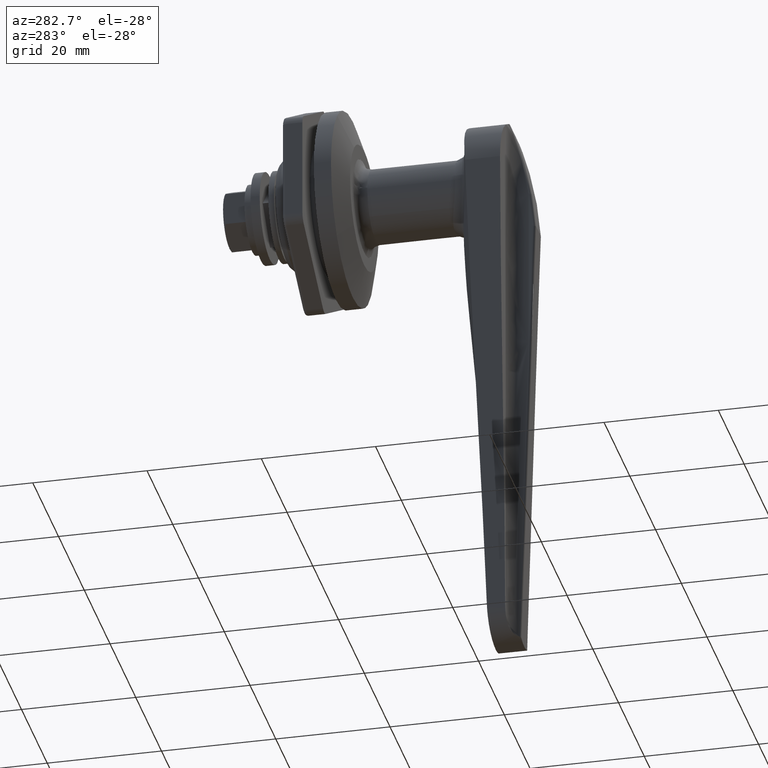
[diagram: clean part render]
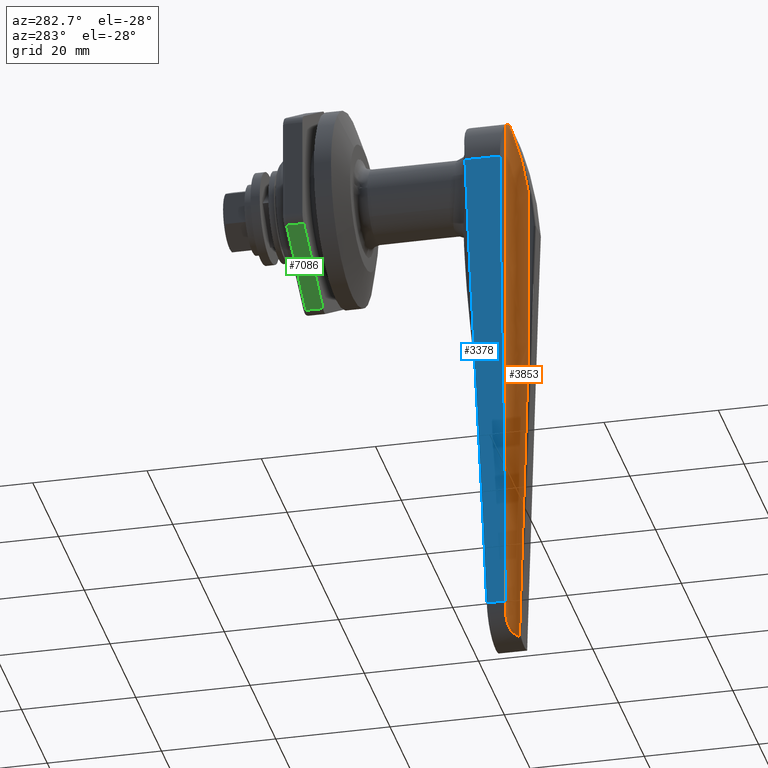
[diagram: same view with three faces highlighted in distinct colors, each labeled with its STEP entity id]
A machine part, auxiliary view with three faces highlighted in distinct colors.
Their STEP definitions:

[orange] entity #3853 — the highlighted face is a freeform B-spline surface patch.
#2181=CARTESIAN_POINT('',(-29.300317116931851,2.250000000000000,-30.382041664599249));
#2182=VERTEX_POINT('',#2181);
#2193=CARTESIAN_POINT('',(-27.753205948540550,2.635133445140440,-87.390744111991296));
#2194=VERTEX_POINT('',#2193);
#2195=CARTESIAN_POINT('',(-27.753205948540529,2.635133445140440,-87.390744111990998));
#2196=CARTESIAN_POINT('',(-28.478824521616303,2.250000000000001,-60.652799116227861));
#2197=CARTESIAN_POINT('',(-29.300317116931851,2.250000000000000,-30.382041664599171));
#2205=(BOUNDED_CURVE()B_SPLINE_CURVE(2,(#2195,#2196,#2197),.UNSPECIFIED.,.F.,.U.)CURVE()GEOMETRIC_REPRESENTATION_ITEM()QUASI_UNIFORM_CURVE()RATIONAL_B_SPLINE_CURVE((1.0,0.970384690576882,1.0))REPRESENTATION_ITEM(''));
#2206=EDGE_CURVE('',#2194,#2182,#2205,.T.);
#2303=CARTESIAN_POINT('',(-29.300317116931851,2.250000000000000,-1.784248279155245));
#2304=VERTEX_POINT('',#2303);
#2441=CARTESIAN_POINT('',(-26.285692763622048,4.207599162533225,11.066866807942500));
#2442=VERTEX_POINT('',#2441);
#2456=CARTESIAN_POINT('',(-29.300317116931851,2.250000000000000,-1.784248279155245));
#2457=CARTESIAN_POINT('',(-29.143552926804951,2.250000000000001,-0.668864856743408));
#2458=CARTESIAN_POINT('',(-28.961436255286941,2.260719576489549,0.441129809373564));
#2459=CARTESIAN_POINT('',(-28.650408571250111,2.312922557619386,2.097181044770110));
#2460=CARTESIAN_POINT('',(-28.540422608520100,2.336418250362267,2.647704449857531));
#2461=CARTESIAN_POINT('',(-28.307855923783620,2.400465414443931,3.745552332330598));
#2462=CARTESIAN_POINT('',(-28.185274495510171,2.440975281650488,4.292878523783736));
#2463=CARTESIAN_POINT('',(-27.927555645539019,2.545856080419150,5.384036733262883));
#2464=CARTESIAN_POINT('',(-27.792211214043981,2.610276817453924,5.928594388820129));
#2465=CARTESIAN_POINT('',(-27.510950188442202,2.772497200802201,7.006740752816092));
#2466=CARTESIAN_POINT('',(-27.364892469498010,2.870074701362623,7.540958676384344));
#2467=CARTESIAN_POINT('',(-27.138725623129769,3.054606392377105,8.332548699328745));
#2468=CARTESIAN_POINT('',(-27.062162030240799,3.122548569446852,8.594776296706456));
#2469=CARTESIAN_POINT('',(-26.906997521007511,3.275383559467648,9.115212298870777));
#2470=CARTESIAN_POINT('',(-26.828252137391129,3.360422718055538,9.373856947564450));
#2471=CARTESIAN_POINT('',(-26.671012667156649,3.551972961376316,9.880246637858651));
#2472=CARTESIAN_POINT('',(-26.592335479248050,3.658457903976230,10.128605558932030));
#2473=CARTESIAN_POINT('',(-26.475550252329789,3.842379968080751,10.490649791611981));
#2474=CARTESIAN_POINT('',(-26.436833947330559,3.907765402244336,10.609563867938840));
#2475=CARTESIAN_POINT('',(-26.360222330914699,4.049229202746024,10.842841838072120));
#2476=CARTESIAN_POINT('',(-26.322371763474600,4.125229274848440,10.957061448279790));
#2477=CARTESIAN_POINT('',(-26.285692763622048,4.207599162533225,11.066866807942500));
#2478=B_SPLINE_CURVE_WITH_KNOTS('',3,(#2456,#2457,#2458,#2459,#2460,#2461,#2462,#2463,#2464,#2465,#2466,#2467,#2468,#2469,#2470,#2471,#2472,#2473,#2474,#2475,#2476,#2477),.UNSPECIFIED.,.F.,.U.,(4,2,2,2,2,2,2,2,2,2,4),(0.0,0.250000000000000,0.375000000000000,0.500000000000000,0.625000000000000,0.750000000000000,0.812500000000000,0.875000000000000,0.937500000000000,0.968750000000000,1.0),.UNSPECIFIED.);
#2479=EDGE_CURVE('',#2304,#2442,#2478,.T.);
#3031=CARTESIAN_POINT('',(-26.000291944954800,5.550000000000000,10.308192589180560));
#3032=VERTEX_POINT('',#3031);
#3033=CARTESIAN_POINT('',(-26.285692763622048,4.207599162533225,11.066866807942500));
#3034=CARTESIAN_POINT('',(-26.236651667942940,4.317725944136397,11.015455372855360));
#3035=CARTESIAN_POINT('',(-26.194090807298618,4.429501586903754,10.960815315840319));
#3036=CARTESIAN_POINT('',(-26.139656556787571,4.599313802280780,10.873633248227989));
#3037=CARTESIAN_POINT('',(-26.123123642914059,4.656178372547856,10.843747810871610));
#3038=CARTESIAN_POINT('',(-26.093437612255411,4.769350670174329,10.782852800130859));
#3039=CARTESIAN_POINT('',(-26.080236122419819,4.825804789640990,10.751768763621079));
#3040=CARTESIAN_POINT('',(-26.022046058660429,5.107343487924081,10.593143422465150));
#3041=CARTESIAN_POINT('',(-26.000296113072160,5.330212157161377,10.456006431828770));
#3042=CARTESIAN_POINT('',(-26.000291944954800,5.550000000000000,10.308192589180560));
#3043=B_SPLINE_CURVE_WITH_KNOTS('',3,(#3033,#3034,#3035,#3036,#3037,#3038,#3039,#3040,#3041,#3042),.UNSPECIFIED.,.F.,.U.,(4,2,2,2,4),(0.0,0.250000000000000,0.375000000000001,0.500000000000002,1.0),.UNSPECIFIED.);
#3044=EDGE_CURVE('',#2442,#3032,#3043,.T.);
#3557=CARTESIAN_POINT('',(-26.000158335875820,5.550000000000000,-84.281672923336998));
#3558=VERTEX_POINT('',#3557);
#3566=CARTESIAN_POINT('',(-26.000158335875820,5.550000000000000,-84.281672923336998));
#3567=CARTESIAN_POINT('',(-26.000291944954800,5.550000000000000,10.308192589180560));
#3568=QUASI_UNIFORM_CURVE('',1,(#3566,#3567),.UNSPECIFIED.,.F.,.U.);
#3569=EDGE_CURVE('',#3558,#3032,#3568,.T.);
#3633=CARTESIAN_POINT('',(-26.000158335875820,5.550000000000000,-84.281672923336998));
#3634=CARTESIAN_POINT('',(-26.000164500015451,5.471309594666036,-84.473054983593329));
#3635=CARTESIAN_POINT('',(-26.002949803357971,5.383380784642218,-84.658820861131915));
#3636=CARTESIAN_POINT('',(-26.018463470973550,5.189803868601191,-85.019230906543228));
#3637=CARTESIAN_POINT('',(-26.031172009214089,5.084152461883709,-85.193874646888418));
#3638=CARTESIAN_POINT('',(-26.061816593291841,4.912626206613198,-85.447326767352095));
#3639=CARTESIAN_POINT('',(-26.073972288178080,4.853272868024025,-85.530389301333997));
#3640=CARTESIAN_POINT('',(-26.103031312104541,4.730217904981112,-85.693610097395549));
#3641=CARTESIAN_POINT('',(-26.119995186500610,4.666360337766319,-85.773925861274861));
#3642=CARTESIAN_POINT('',(-26.178560741519899,4.471271111450188,-86.006951060184633));
#3643=CARTESIAN_POINT('',(-26.227936113338160,4.335734336798652,-86.152856106765654));
#3644=CARTESIAN_POINT('',(-26.322162967242271,4.126305555319476,-86.357692110284972));
#3645=CARTESIAN_POINT('',(-26.356943178713511,4.055477332835698,-86.423631486645661));
#3646=CARTESIAN_POINT('',(-26.434213997690971,3.912181539334816,-86.550827094485754));
#3647=CARTESIAN_POINT('',(-26.476919807453498,3.839429852114647,-86.612286660595586));
#3648=CARTESIAN_POINT('',(-26.615160450660049,3.624041539581596,-86.786013583884028));
#3649=CARTESIAN_POINT('',(-26.721344050027358,3.483002872134295,-86.888852841964777));
#3650=CARTESIAN_POINT('',(-26.904231668460611,3.279036717290245,-87.025899696549445));
#3651=CARTESIAN_POINT('',(-26.969137961299261,3.212316732122377,-87.068708227312172));
#3652=CARTESIAN_POINT('',(-27.107431309401392,3.082131650250418,-87.148887864415101));
#3653=CARTESIAN_POINT('',(-27.181312175480102,3.018315567592580,-87.186446497755639));
#3654=CARTESIAN_POINT('',(-27.411248187120400,2.837152057229609,-87.289063813306285));
#3655=CARTESIAN_POINT('',(-27.576296583446851,2.729027984004817,-87.344859450559667));
#3656=CARTESIAN_POINT('',(-27.753205948540550,2.635133445140440,-87.390744111991296));
#3657=B_SPLINE_CURVE_WITH_KNOTS('',3,(#3633,#3634,#3635,#3636,#3637,#3638,#3639,#3640,#3641,#3642,#3643,#3644,#3645,#3646,#3647,#3648,#3649,#3650,#3651,#3652,#3653,#3654,#3655,#3656),.UNSPECIFIED.,.F.,.U.,(4,2,2,2,2,2,2,2,2,2,2,4),(0.0,0.125000000000001,0.250000000000003,0.312500000000003,0.375000000000004,0.500000000000006,0.562500000000004,0.625000000000003,0.749999999999999,0.812499999999999,0.874999999999999,1.0),.UNSPECIFIED.);
#3658=EDGE_CURVE('',#3558,#2194,#3657,.T.);
#3827=CARTESIAN_POINT('',(-26.001447944512510,5.636383929415982,-89.852184384989641));
#3828=CARTESIAN_POINT('',(-26.001447944512510,5.636383929415982,13.589843087765800));
#3829=CARTESIAN_POINT('',(-25.906292631331159,2.002549125094148,-89.852184384989656));
#3830=CARTESIAN_POINT('',(-25.906292631331159,2.002549125094148,13.589843087765804));
#3831=CARTESIAN_POINT('',(-29.532374297984223,2.258169283708224,-89.852184384989627));
#3832=CARTESIAN_POINT('',(-29.532374297984223,2.258169283708224,13.589843087765800));
#3840=(BOUNDED_SURFACE()B_SPLINE_SURFACE(1,2,((#3827,#3829,#3831),(#3828,#3830,#3832)),.UNSPECIFIED.,.F.,.F.,.U.)B_SPLINE_SURFACE_WITH_KNOTS((2,2),(3,3),(0.0,103.442027472755400),(0.0,5.844770852761927),.UNSPECIFIED.)GEOMETRIC_REPRESENTATION_ITEM()RATIONAL_B_SPLINE_SURFACE(((1.0,0.670944160389006,0.996392772764486),(1.0,0.670944160389006,0.996392772764486)))REPRESENTATION_ITEM('')SURFACE());
#3841=ORIENTED_EDGE('',*,*,#3658,.T.);
#3842=ORIENTED_EDGE('',*,*,#2206,.T.);
#3843=CARTESIAN_POINT('',(-29.300317116931851,2.250000000000000,-30.382041664599249));
#3844=CARTESIAN_POINT('',(-29.300317116931851,2.250000000000000,-1.784248279155245));
#3845=QUASI_UNIFORM_CURVE('',1,(#3843,#3844),.UNSPECIFIED.,.F.,.U.);
#3846=EDGE_CURVE('',#2182,#2304,#3845,.T.);
#3847=ORIENTED_EDGE('',*,*,#3846,.T.);
#3848=ORIENTED_EDGE('',*,*,#2479,.T.);
#3849=ORIENTED_EDGE('',*,*,#3044,.T.);
#3850=ORIENTED_EDGE('',*,*,#3569,.F.);
#3851=EDGE_LOOP('',(#3841,#3842,#3847,#3848,#3849,#3850));
#3852=FACE_OUTER_BOUND('',#3851,.T.);
#3853=ADVANCED_FACE('',(#3852),#3840,.F.);

[blue] entity #3378 — the highlighted face is a freeform B-spline surface patch.
#3055=CARTESIAN_POINT('',(-19.852089478674500,9.942125116040240,1.940300609303185));
#3056=VERTEX_POINT('',#3055);
#3106=CARTESIAN_POINT('',(-26.000041112782998,9.942125116040240,1.940300609303050));
#3107=VERTEX_POINT('',#3106);
#3108=CARTESIAN_POINT('',(-26.000041112782998,9.942125116040240,1.940300609303050));
#3109=CARTESIAN_POINT('',(-19.852089478674500,9.942125116040240,1.940300609303185));
#3110=QUASI_UNIFORM_CURVE('',1,(#3108,#3109),.UNSPECIFIED.,.F.,.U.);
#3111=EDGE_CURVE('',#3107,#3056,#3110,.T.);
#3307=CARTESIAN_POINT('',(-19.852089478674500,9.942125116040243,1.940300609303277));
#3308=CARTESIAN_POINT('',(-21.901406690043981,9.942125116040243,1.940300609303277));
#3309=CARTESIAN_POINT('',(-23.950723901413500,9.942125116040243,1.940300609303277));
#3310=CARTESIAN_POINT('',(-26.000041112782981,9.942125116040243,1.940300609303277));
#3311=CARTESIAN_POINT('',(-19.874726319615078,9.934336060116323,1.293533725286760));
#3312=CARTESIAN_POINT('',(-21.916493032143759,9.934336060116323,1.293533725286760));
#3313=CARTESIAN_POINT('',(-23.958259744672471,9.934336060116323,1.293533725286760));
#3314=CARTESIAN_POINT('',(-26.000026457201159,9.934336060116323,1.293533725286760));
#3315=CARTESIAN_POINT('',(-20.366242220785651,9.739655697810321,-12.749777736731410));
#3316=CARTESIAN_POINT('',(-22.244070696338579,9.739655697810321,-12.749777736731410));
#3317=CARTESIAN_POINT('',(-24.121899171891521,9.739655697810321,-12.749777736731410));
#3318=CARTESIAN_POINT('',(-25.999727647444448,9.739655697810321,-12.749777736731410));
#3319=CARTESIAN_POINT('',(-21.345991729432480,8.032166265139974,-40.742620840932993));
#3320=CARTESIAN_POINT('',(-22.897372505980279,8.032166265139974,-40.742620840932993));
#3321=CARTESIAN_POINT('',(-24.448753282528209,8.032166265139974,-40.742620840932993));
#3322=CARTESIAN_POINT('',(-26.000134059076011,8.032166265139974,-40.742620840932993));
#3323=CARTESIAN_POINT('',(-22.303103816034870,6.089543028374975,-68.088680458128664));
#3324=CARTESIAN_POINT('',(-23.535404522221949,6.089543028374975,-68.088680458128664));
#3325=CARTESIAN_POINT('',(-24.767705228408850,6.089543028374975,-68.088680458128664));
#3326=CARTESIAN_POINT('',(-26.000005934595929,6.089543028374975,-68.088680458128664));
#3327=CARTESIAN_POINT('',(-22.791338238143990,6.000646811528799,-82.038235375539301));
#3328=CARTESIAN_POINT('',(-23.860892173053440,6.000646811528799,-82.038235375539301));
#3329=CARTESIAN_POINT('',(-24.930446107962801,6.000646811528799,-82.038235375539301));
#3330=CARTESIAN_POINT('',(-26.000000042872252,6.000646811528799,-82.038235375539301));
#3331=B_SPLINE_SURFACE_WITH_KNOTS('',3,3,((#3307,#3311,#3315,#3319,#3323,#3327),(#3308,#3312,#3316,#3320,#3324,#3328),(#3309,#3313,#3317,#3321,#3325,#3329),(#3310,#3314,#3318,#3322,#3326,#3330)),.UNSPECIFIED.,.F.,.F.,.U.,(4,4),(4,1,1,4),(0.0,6.147951634108484),(0.0,1.945710894104471,42.247408365858441,84.212737943455309),.UNSPECIFIED.);
#3332=CARTESIAN_POINT('',(-21.326636525254148,8.0,-40.189615007261047));
#3333=VERTEX_POINT('',#3332);
#3334=CARTESIAN_POINT('',(-22.791338238143950,6.000646811528791,-82.038235375539003));
#3335=VERTEX_POINT('',#3334);
#3336=CARTESIAN_POINT('',(-21.326636525254148,8.0,-40.189615007261047));
#3337=CARTESIAN_POINT('',(-21.814870247890038,7.080496844258388,-54.139149939713477));
#3338=CARTESIAN_POINT('',(-22.303103816034870,6.089543028374934,-68.088680458128636));
#3339=CARTESIAN_POINT('',(-22.791338238143979,6.000646811528778,-82.038235375539003));
#3340=B_SPLINE_CURVE_WITH_KNOTS('',3,(#3336,#3337,#3338,#3339),.UNSPECIFIED.,.F.,.U.,(4,4),(0.521896156880881,0.940382418793206),.UNSPECIFIED.);
#3341=EDGE_CURVE('',#3333,#3335,#3340,.T.);
#3342=ORIENTED_EDGE('',*,*,#3341,.T.);
#3343=CARTESIAN_POINT('',(-26.000000042872252,6.000646811528800,-82.038235375539202));
#3344=VERTEX_POINT('',#3343);
#3345=CARTESIAN_POINT('',(-22.791338238143950,6.000646811528791,-82.038235375539003));
#3346=CARTESIAN_POINT('',(-26.000000042872252,6.000646811528800,-82.038235375539202));
#3347=QUASI_UNIFORM_CURVE('',1,(#3345,#3346),.UNSPECIFIED.,.F.,.U.);
#3348=EDGE_CURVE('',#3335,#3344,#3347,.T.);
#3349=ORIENTED_EDGE('',*,*,#3348,.T.);
#3350=CARTESIAN_POINT('',(-26.000041112782970,9.942125116040241,1.940300609303056));
#3351=CARTESIAN_POINT('',(-26.000026457201152,9.934336060116321,1.293533725286612));
#3352=CARTESIAN_POINT('',(-25.999727647444448,9.739655697810315,-12.749777736731490));
#3353=CARTESIAN_POINT('',(-26.000134059076011,8.032166265139979,-40.742620840932908));
#3354=CARTESIAN_POINT('',(-26.000005934595929,6.089543028374986,-68.088680458128508));
#3355=CARTESIAN_POINT('',(-26.000000042872252,6.000646811528801,-82.038235375539074));
#3356=B_SPLINE_CURVE_WITH_KNOTS('',3,(#3350,#3351,#3352,#3353,#3354,#3355),.UNSPECIFIED.,.F.,.U.,(4,1,1,4),(0.100596951549487,0.119999951288358,0.521896156880881,0.940382418793207),.UNSPECIFIED.);
#3357=EDGE_CURVE('',#3107,#3344,#3356,.T.);
#3358=ORIENTED_EDGE('',*,*,#3357,.F.);
#3359=ORIENTED_EDGE('',*,*,#3111,.T.);
#3360=CARTESIAN_POINT('',(-19.920000000000002,9.915000000000001,-2.076464E-013));
#3361=VERTEX_POINT('',#3360);
#3362=CARTESIAN_POINT('',(-19.852089478674500,9.942125116040240,1.940300609303185));
#3363=CARTESIAN_POINT('',(-19.874726319615110,9.934336060116317,1.293533725286309));
#3364=CARTESIAN_POINT('',(-19.897363160087110,9.925370026069285,0.646766854657675));
#3365=CARTESIAN_POINT('',(-19.920000000000002,9.915000000000001,-2.076464E-013));
#3366=B_SPLINE_CURVE_WITH_KNOTS('',3,(#3362,#3363,#3364,#3365),.UNSPECIFIED.,.F.,.U.,(4,4),(0.100596951549481,0.119999951288358),.UNSPECIFIED.);
#3367=EDGE_CURVE('',#3056,#3361,#3366,.T.);
#3368=ORIENTED_EDGE('',*,*,#3367,.T.);
#3369=CARTESIAN_POINT('',(-19.920000000000002,9.915000000000001,-2.076464E-013));
#3370=CARTESIAN_POINT('',(-20.388879049120980,9.700204649526516,-13.396544260596830));
#3371=CARTESIAN_POINT('',(-20.857757858429999,8.883051280188221,-26.793081669430538));
#3372=CARTESIAN_POINT('',(-21.326636525254148,8.0,-40.189615007261047));
#3373=B_SPLINE_CURVE_WITH_KNOTS('',3,(#3369,#3370,#3371,#3372),.UNSPECIFIED.,.F.,.U.,(4,4),(0.119999951288358,0.521896156880881),.UNSPECIFIED.);
#3374=EDGE_CURVE('',#3361,#3333,#3373,.T.);
#3375=ORIENTED_EDGE('',*,*,#3374,.T.);
#3376=EDGE_LOOP('',(#3342,#3349,#3358,#3359,#3368,#3375));
#3377=FACE_OUTER_BOUND('',#3376,.T.);
#3378=ADVANCED_FACE('',(#3377),#3331,.F.);

[green] entity #7086 — the highlighted face is a freeform B-spline surface patch.
#6632=CARTESIAN_POINT('',(10.0,16.011445293168499,-10.385392250743999));
#6633=VERTEX_POINT('',#6632);
#6726=CARTESIAN_POINT('',(10.0,1.011445293157412,-19.045392250750449));
#6727=VERTEX_POINT('',#6726);
#6738=CARTESIAN_POINT('',(10.0,16.011445293168499,-10.385392250743999));
#6739=CARTESIAN_POINT('',(10.0,1.011445293157412,-19.045392250750449));
#6740=QUASI_UNIFORM_CURVE('',1,(#6738,#6739),.UNSPECIFIED.,.F.,.U.);
#6741=EDGE_CURVE('',#6633,#6727,#6740,.T.);
#7044=CARTESIAN_POINT('',(7.0,1.011445293157412,-19.045392250750449));
#7045=VERTEX_POINT('',#7044);
#7046=CARTESIAN_POINT('',(7.0,1.011445293157412,-19.045392250750449));
#7047=CARTESIAN_POINT('',(10.0,1.011445293157412,-19.045392250750449));
#7048=QUASI_UNIFORM_CURVE('',1,(#7046,#7047),.UNSPECIFIED.,.F.,.U.);
#7049=EDGE_CURVE('',#7045,#6727,#7048,.T.);
#7065=CARTESIAN_POINT('',(6.850150005814582,0.262194899801963,-19.477959477847659));
#7066=CARTESIAN_POINT('',(6.850150005814582,16.760695686523938,-9.952825023646776));
#7067=CARTESIAN_POINT('',(10.149850074651690,0.262194899801963,-19.477959477847659));
#7068=CARTESIAN_POINT('',(10.149850074651690,16.760695686523938,-9.952825023646776));
#7069=B_SPLINE_SURFACE_WITH_KNOTS('',1,1,((#7065,#7067),(#7066,#7068)),.UNSPECIFIED.,.F.,.F.,.U.,(2,2),(2,2),(0.0,19.050688034296041),(0.0,3.299700068837106),.UNSPECIFIED.);
#7070=CARTESIAN_POINT('',(7.0,16.011445293168499,-10.385392250743999));
#7071=VERTEX_POINT('',#7070);
#7072=CARTESIAN_POINT('',(7.0,16.011445293168499,-10.385392250743999));
#7073=CARTESIAN_POINT('',(10.0,16.011445293168499,-10.385392250743999));
#7074=QUASI_UNIFORM_CURVE('',1,(#7072,#7073),.UNSPECIFIED.,.F.,.U.);
#7075=EDGE_CURVE('',#7071,#6633,#7074,.T.);
#7076=ORIENTED_EDGE('',*,*,#7075,.T.);
#7077=ORIENTED_EDGE('',*,*,#6741,.T.);
#7078=ORIENTED_EDGE('',*,*,#7049,.F.);
#7079=CARTESIAN_POINT('',(7.0,1.011445293157412,-19.045392250750449));
#7080=CARTESIAN_POINT('',(7.0,16.011445293168499,-10.385392250743999));
#7081=QUASI_UNIFORM_CURVE('',1,(#7079,#7080),.UNSPECIFIED.,.F.,.U.);
#7082=EDGE_CURVE('',#7045,#7071,#7081,.T.);
#7083=ORIENTED_EDGE('',*,*,#7082,.T.);
#7084=EDGE_LOOP('',(#7076,#7077,#7078,#7083));
#7085=FACE_OUTER_BOUND('',#7084,.T.);
#7086=ADVANCED_FACE('',(#7085),#7069,.T.);